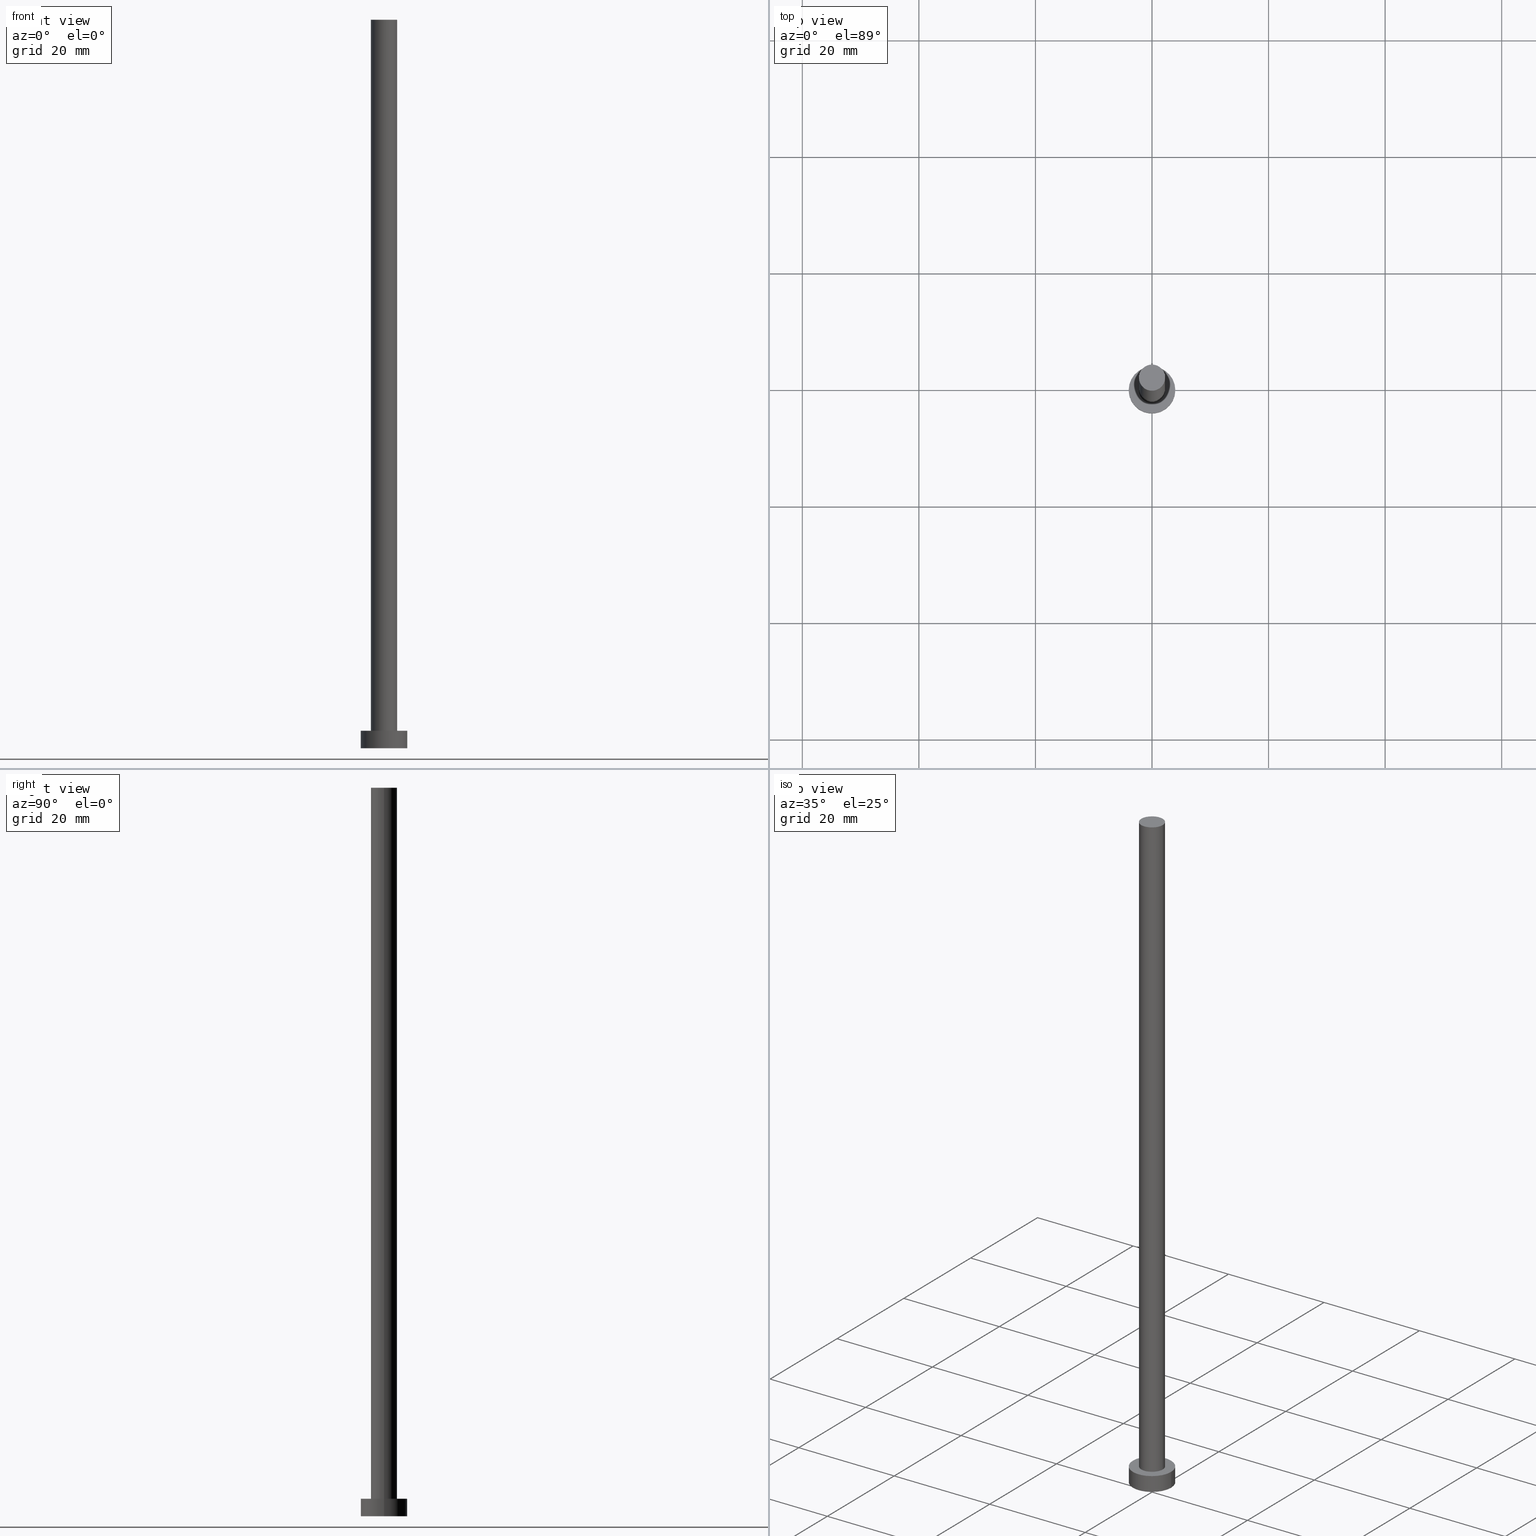
[diagram: canonical four-view strip — front | top / right | iso, engineering-drawing reading convention]
A machine part, canonical four-view strip (front | top / right | iso — engineering-drawing reading convention). The complete STEP part file that produces these views, byte-faithful:
ISO-10303-21;
HEADER;
FILE_DESCRIPTION (( 'STEP AP203' ),
    '1' );
FILE_NAME ('6669.STEP',
    '2023-02-13T13:55:14',
    ( '' ),
    ( '' ),
    'SwSTEP 2.0',
    'SolidWorks 2019',
    '' );
FILE_SCHEMA (( 'CONFIG_CONTROL_DESIGN' ));
ENDSEC;

DATA;
#1 = DIRECTION ( 'NONE',  ( -0.000000000000000000, -0.000000000000000000, -1.000000000000000000 ) ) ;
#2 = MECHANICAL_CONTEXT ( 'NONE', #223, 'mechanical' ) ;
#3 = ORIENTED_EDGE ( 'NONE', *, *, #190, .F. ) ;
#4 = EDGE_CURVE ( 'NONE', #200, #194, #64, .T. ) ;
#5 = DIRECTION ( 'NONE',  ( -0.000000000000000000, -0.000000000000000000, -1.000000000000000000 ) ) ;
#6 = LOCAL_TIME ( 14, 55, 14.00000000000000000, #148 ) ;
#7 = EDGE_LOOP ( 'NONE', ( #3, #105 ) ) ;
#8 = APPROVAL_STATUS ( 'not_yet_approved' ) ;
#9 = ORIENTED_EDGE ( 'NONE', *, *, #128, .F. ) ;
#10 = ORIENTED_EDGE ( 'NONE', *, *, #255, .F. ) ;
#11 = ADVANCED_FACE ( 'NONE', ( #151 ), #90, .T. ) ;
#12 = APPROVAL_DATE_TIME ( #31, #188 ) ;
#13 = VECTOR ( 'NONE', #5, 1000.000000000000000 ) ;
#14 = PRODUCT_DEFINITION_FORMATION_WITH_SPECIFIED_SOURCE ( 'LIBOVOLN�', '', #59, .NOT_KNOWN. ) ;
#15 = FACE_OUTER_BOUND ( 'NONE', #7, .T. ) ;
#16 = DIRECTION ( 'NONE',  ( 0.000000000000000000, 0.000000000000000000, 1.000000000000000000 ) ) ;
#17 = DIRECTION ( 'NONE',  ( 0.000000000000000000, 0.000000000000000000, 1.000000000000000000 ) ) ;
#18 = CARTESIAN_POINT ( 'NONE',  ( 0.000000000000000000, 0.000000000000000000, 0.000000000000000000 ) ) ;
#19 = MANIFOLD_SOLID_BREP ( 'P�idat vysunut�m3', #75 ) ;
#20 = CIRCLE ( 'NONE', #48, 4.000000000000000000 ) ;
#21 = ORIENTED_EDGE ( 'NONE', *, *, #4, .F. ) ;
#22 = DIRECTION ( 'NONE',  ( 1.000000000000000000, 0.000000000000000000, 0.000000000000000000 ) ) ;
#23 = ORIENTED_EDGE ( 'NONE', *, *, #173, .F. ) ;
#24 = PERSON_AND_ORGANIZATION_ROLE ( 'design_owner' ) ;
#25 = EDGE_LOOP ( 'NONE', ( #103, #47 ) ) ;
#26 = VERTEX_POINT ( 'NONE', #186 ) ;
#27 = ADVANCED_FACE ( 'NONE', ( #114 ), #127, .T. ) ;
#28 = ORIENTED_EDGE ( 'NONE', *, *, #190, .T. ) ;
#29 = AXIS2_PLACEMENT_3D ( 'NONE', #230, #58, #78 ) ;
#30 = APPROVAL_STATUS ( 'not_yet_approved' ) ;
#31 = DATE_AND_TIME ( #93, #6 ) ;
#32 = APPROVAL_ROLE ( '' ) ;
#33 = PERSON_AND_ORGANIZATION_ROLE ( 'creator' ) ;
#34 = AXIS2_PLACEMENT_3D ( 'NONE', #239, #138, #22 ) ;
#35 = CC_DESIGN_PERSON_AND_ORGANIZATION_ASSIGNMENT ( #220, #206, ( #14 ) ) ;
#36 = FACE_BOUND ( 'NONE', #67, .T. ) ;
#37 = AXIS2_PLACEMENT_3D ( 'NONE', #246, #95, #189 ) ;
#38 = CARTESIAN_POINT ( 'NONE',  ( 2.250000000000000000, 2.755455298081543792E-16, 125.0000000000000000 ) ) ;
#39 = CARTESIAN_POINT ( 'NONE',  ( 0.000000000000000000, 0.000000000000000000, 0.000000000000000000 ) ) ;
#40 = CC_DESIGN_PERSON_AND_ORGANIZATION_ASSIGNMENT ( #204, #33, ( #143 ) ) ;
#41 = CYLINDRICAL_SURFACE ( 'NONE', #29, 2.250000000000000000 ) ;
#42 = VECTOR ( 'NONE', #245, 1000.000000000000000 ) ;
#43 = DIRECTION ( 'NONE',  ( 1.000000000000000000, 0.000000000000000000, -0.000000000000000000 ) ) ;
#44 = ORIENTED_EDGE ( 'NONE', *, *, #229, .F. ) ;
#45 = APPLICATION_PROTOCOL_DEFINITION ( 'international standard', 'config_control_design', 1994, #223 ) ;
#46 = CC_DESIGN_DATE_AND_TIME_ASSIGNMENT ( #202, #221, ( #118 ) ) ;
#47 = ORIENTED_EDGE ( 'NONE', *, *, #255, .T. ) ;
#48 = AXIS2_PLACEMENT_3D ( 'NONE', #157, #60, #215 ) ;
#49 = PERSON_AND_ORGANIZATION ( #88, #109 ) ;
#50 = SECURITY_CLASSIFICATION_LEVEL ( 'unclassified' ) ;
#51 = APPROVAL_STATUS ( 'not_yet_approved' ) ;
#52 = ADVANCED_FACE ( 'NONE', ( #36, #120 ), #254, .T. ) ;
#53 = CARTESIAN_POINT ( 'NONE',  ( -4.000000000000000000, 0.000000000000000000, 3.000000000000000000 ) ) ;
#54 = CARTESIAN_POINT ( 'NONE',  ( 0.000000000000000000, 0.000000000000000000, 0.000000000000000000 ) ) ;
#55 = PLANE ( 'NONE',  #166 ) ;
#56 = PRODUCT_RELATED_PRODUCT_CATEGORY ( 'detail', '', ( #59 ) ) ;
#57 = CARTESIAN_POINT ( 'NONE',  ( 0.000000000000000000, 0.000000000000000000, 3.000000000000000000 ) ) ;
#58 = DIRECTION ( 'NONE',  ( -0.000000000000000000, -0.000000000000000000, -1.000000000000000000 ) ) ;
#59 = PRODUCT ( '6669', '6669', '', ( #2 ) ) ;
#60 = DIRECTION ( 'NONE',  ( 0.000000000000000000, 0.000000000000000000, 1.000000000000000000 ) ) ;
#61 = VERTEX_POINT ( 'NONE', #210 ) ;
#62 = ORIENTED_EDGE ( 'NONE', *, *, #173, .T. ) ;
#63 = CARTESIAN_POINT ( 'NONE',  ( 0.000000000000000000, 0.000000000000000000, 125.0000000000000000 ) ) ;
#64 = LINE ( 'NONE', #139, #42 ) ;
#65 = ADVANCED_FACE ( 'NONE', ( #15 ), #55, .F. ) ;
#66 = APPLICATION_PROTOCOL_DEFINITION ( 'international standard', 'config_control_design', 1994, #169 ) ;
#67 = EDGE_LOOP ( 'NONE', ( #162, #9 ) ) ;
#68 = ORIENTED_EDGE ( 'NONE', *, *, #213, .T. ) ;
#69 =( GEOMETRIC_REPRESENTATION_CONTEXT ( 3 ) GLOBAL_UNCERTAINTY_ASSIGNED_CONTEXT ( ( #252 ) ) GLOBAL_UNIT_ASSIGNED_CONTEXT ( ( #216, #84, #178 ) ) REPRESENTATION_CONTEXT ( 'NONE', 'WORKASPACE' ) );
#70 = CC_DESIGN_APPROVAL ( #170, ( #14 ) ) ;
#71 = PERSON_AND_ORGANIZATION ( #88, #109 ) ;
#72 = EDGE_CURVE ( 'NONE', #197, #26, #121, .T. ) ;
#73 = DIRECTION ( 'NONE',  ( 1.000000000000000000, 0.000000000000000000, 0.000000000000000000 ) ) ;
#74 = CARTESIAN_POINT ( 'NONE',  ( -2.250000000000000000, 0.000000000000000000, 125.0000000000000000 ) ) ;
#75 = CLOSED_SHELL ( 'NONE', ( #133, #208, #27, #52, #65, #11, #79 ) ) ;
#76 = DIRECTION ( 'NONE',  ( 0.000000000000000000, 0.000000000000000000, 1.000000000000000000 ) ) ;
#77 = CARTESIAN_POINT ( 'NONE',  ( 0.000000000000000000, 0.000000000000000000, 3.000000000000000000 ) ) ;
#78 = DIRECTION ( 'NONE',  ( -1.000000000000000000, 0.000000000000000000, 0.000000000000000000 ) ) ;
#79 = ADVANCED_FACE ( 'NONE', ( #172 ), #175, .T. ) ;
#80 = ORIENTED_EDGE ( 'NONE', *, *, #128, .T. ) ;
#81 = ORIENTED_EDGE ( 'NONE', *, *, #229, .T. ) ;
#82 = EDGE_CURVE ( 'NONE', #194, #160, #91, .T. ) ;
#83 = ORIENTED_EDGE ( 'NONE', *, *, #4, .T. ) ;
#84 =( NAMED_UNIT ( * ) PLANE_ANGLE_UNIT ( ) SI_UNIT ( $, .RADIAN. ) );
#85 = ORIENTED_EDGE ( 'NONE', *, *, #184, .F. ) ;
#86 = CALENDAR_DATE ( 2023, 13, 2 ) ;
#87 = LOCAL_TIME ( 14, 55, 14.00000000000000000, #112 ) ;
#88 = PERSON ( 'NEUR�EN�', 'NEUR�EN�', 'NEUR�EN�', ('NEUR�EN�'), ('NEUR�EN�'), ('NEUR�EN�') ) ;
#89 = LOCAL_TIME ( 14, 55, 14.00000000000000000, #241 ) ;
#90 = CYLINDRICAL_SURFACE ( 'NONE', #201, 2.250000000000000000 ) ;
#91 = CIRCLE ( 'NONE', #212, 4.000000000000000000 ) ;
#92 = DATE_AND_TIME ( #219, #89 ) ;
#93 = CALENDAR_DATE ( 2023, 13, 2 ) ;
#94 = EDGE_CURVE ( 'NONE', #26, #61, #250, .T. ) ;
#95 = DIRECTION ( 'NONE',  ( -0.000000000000000000, -0.000000000000000000, -1.000000000000000000 ) ) ;
#96 = CARTESIAN_POINT ( 'NONE',  ( 0.000000000000000000, 0.000000000000000000, 3.000000000000000000 ) ) ;
#97 = LINE ( 'NONE', #38, #99 ) ;
#98 = DIRECTION ( 'NONE',  ( -0.000000000000000000, -0.000000000000000000, -1.000000000000000000 ) ) ;
#99 = VECTOR ( 'NONE', #98, 1000.000000000000000 ) ;
#100 = CARTESIAN_POINT ( 'NONE',  ( -2.250000000000000000, 0.000000000000000000, 125.0000000000000000 ) ) ;
#101 = AXIS2_PLACEMENT_3D ( 'NONE', #63, #158, #235 ) ;
#102 = ADVANCED_BREP_SHAPE_REPRESENTATION ( '6669', ( #19, #130 ), #69 ) ;
#103 = ORIENTED_EDGE ( 'NONE', *, *, #226, .T. ) ;
#104 = CC_DESIGN_DATE_AND_TIME_ASSIGNMENT ( #168, #126, ( #143 ) ) ;
#105 = ORIENTED_EDGE ( 'NONE', *, *, #82, .F. ) ;
#106 = CIRCLE ( 'NONE', #111, 2.250000000000000000 ) ;
#107 = ORIENTED_EDGE ( 'NONE', *, *, #94, .T. ) ;
#108 = CIRCLE ( 'NONE', #233, 4.000000000000000000 ) ;
#109 = ORGANIZATION ( 'NEUR�EN�', 'NEUR�EN�', '' ) ;
#110 = SHAPE_DEFINITION_REPRESENTATION ( #122, #102 ) ;
#111 = AXIS2_PLACEMENT_3D ( 'NONE', #77, #154, #156 ) ;
#112 = COORDINATED_UNIVERSAL_TIME_OFFSET ( 1, 0, .AHEAD. ) ;
#113 = CALENDAR_DATE ( 2023, 13, 2 ) ;
#114 = FACE_OUTER_BOUND ( 'NONE', #242, .T. ) ;
#115 = AXIS2_PLACEMENT_3D ( 'NONE', #57, #176, #132 ) ;
#116 = CARTESIAN_POINT ( 'NONE',  ( 0.000000000000000000, 0.000000000000000000, 125.0000000000000000 ) ) ;
#117 = CARTESIAN_POINT ( 'NONE',  ( 4.000000000000000000, 4.898587196589412829E-16, 3.000000000000000000 ) ) ;
#118 = SECURITY_CLASSIFICATION ( '', '', #50 ) ;
#119 = DIRECTION ( 'NONE',  ( 1.000000000000000000, 0.000000000000000000, -0.000000000000000000 ) ) ;
#120 = FACE_OUTER_BOUND ( 'NONE', #238, .T. ) ;
#121 = LINE ( 'NONE', #74, #135 ) ;
#122 = PRODUCT_DEFINITION_SHAPE ( 'NONE', 'NONE',  #143 ) ;
#123 = EDGE_LOOP ( 'NONE', ( #85, #83, #182, #124 ) ) ;
#124 = ORIENTED_EDGE ( 'NONE', *, *, #213, .F. ) ;
#125 = EDGE_LOOP ( 'NONE', ( #10, #62, #80, #217 ) ) ;
#126 = DATE_TIME_ROLE ( 'creation_date' ) ;
#127 = CYLINDRICAL_SURFACE ( 'NONE', #37, 4.000000000000000000 ) ;
#128 = EDGE_CURVE ( 'NONE', #61, #26, #106, .T. ) ;
#129 = AXIS2_PLACEMENT_3D ( 'NONE', #211, #16, #73 ) ;
#130 = AXIS2_PLACEMENT_3D ( 'NONE', #196, #136, #214 ) ;
#131 = DIRECTION ( 'NONE',  ( 0.000000000000000000, 0.000000000000000000, 1.000000000000000000 ) ) ;
#132 = DIRECTION ( 'NONE',  ( -1.000000000000000000, 0.000000000000000000, 0.000000000000000000 ) ) ;
#133 = ADVANCED_FACE ( 'NONE', ( #171 ), #41, .T. ) ;
#134 = CARTESIAN_POINT ( 'NONE',  ( 2.250000000000000000, 2.755455298081543792E-16, 125.0000000000000000 ) ) ;
#135 = VECTOR ( 'NONE', #1, 1000.000000000000000 ) ;
#136 = DIRECTION ( 'NONE',  ( 0.000000000000000000, 0.000000000000000000, 1.000000000000000000 ) ) ;
#137 = CC_DESIGN_PERSON_AND_ORGANIZATION_ASSIGNMENT ( #49, #225, ( #14 ) ) ;
#138 = DIRECTION ( 'NONE',  ( 0.000000000000000000, 0.000000000000000000, 1.000000000000000000 ) ) ;
#139 = CARTESIAN_POINT ( 'NONE',  ( 4.000000000000000000, 4.898587196589412829E-16, 3.000000000000000000 ) ) ;
#140 = CC_DESIGN_SECURITY_CLASSIFICATION ( #118, ( #14 ) ) ;
#141 = PERSON_AND_ORGANIZATION ( #88, #109 ) ;
#142 = ORIENTED_EDGE ( 'NONE', *, *, #226, .F. ) ;
#143 = PRODUCT_DEFINITION ( 'NEZN�M�', '', #14, #240 ) ;
#144 = CIRCLE ( 'NONE', #34, 2.250000000000000000 ) ;
#145 = COORDINATED_UNIVERSAL_TIME_OFFSET ( 1, 0, .AHEAD. ) ;
#146 = ORIENTED_EDGE ( 'NONE', *, *, #184, .T. ) ;
#147 = DIRECTION ( 'NONE',  ( -0.000000000000000000, -0.000000000000000000, -1.000000000000000000 ) ) ;
#148 = COORDINATED_UNIVERSAL_TIME_OFFSET ( 1, 0, .AHEAD. ) ;
#149 = CC_DESIGN_APPROVAL ( #188, ( #118 ) ) ;
#150 = COORDINATED_UNIVERSAL_TIME_OFFSET ( 1, 0, .AHEAD. ) ;
#151 = FACE_OUTER_BOUND ( 'NONE', #195, .T. ) ;
#152 = APPROVAL_PERSON_ORGANIZATION ( #163, #188, #244 ) ;
#153 = DIRECTION ( 'NONE',  ( 1.000000000000000000, 0.000000000000000000, 0.000000000000000000 ) ) ;
#154 = DIRECTION ( 'NONE',  ( 0.000000000000000000, 0.000000000000000000, 1.000000000000000000 ) ) ;
#155 = FACE_OUTER_BOUND ( 'NONE', #123, .T. ) ;
#156 = DIRECTION ( 'NONE',  ( 1.000000000000000000, 0.000000000000000000, 0.000000000000000000 ) ) ;
#157 = CARTESIAN_POINT ( 'NONE',  ( 0.000000000000000000, 0.000000000000000000, 3.000000000000000000 ) ) ;
#158 = DIRECTION ( 'NONE',  ( 0.000000000000000000, 0.000000000000000000, 1.000000000000000000 ) ) ;
#159 = APPROVAL_PERSON_ORGANIZATION ( #71, #170, #32 ) ;
#160 = VERTEX_POINT ( 'NONE', #228 ) ;
#161 = APPROVAL_ROLE ( '' ) ;
#162 = ORIENTED_EDGE ( 'NONE', *, *, #94, .F. ) ;
#163 = PERSON_AND_ORGANIZATION ( #88, #109 ) ;
#164 = CARTESIAN_POINT ( 'NONE',  ( 0.000000000000000000, 0.000000000000000000, 125.0000000000000000 ) ) ;
#165 = APPROVAL ( #8, 'NEUR�EN�' ) ;
#166 = AXIS2_PLACEMENT_3D ( 'NONE', #54, #209, #193 ) ;
#167 = APPROVAL_DATE_TIME ( #92, #165 ) ;
#168 = DATE_AND_TIME ( #185, #253 ) ;
#169 = APPLICATION_CONTEXT ( 'configuration controlled 3d designs of mechanical parts and assemblies' ) ;
#170 = APPROVAL ( #51, 'NEUR�EN�' ) ;
#171 = FACE_OUTER_BOUND ( 'NONE', #125, .T. ) ;
#172 = FACE_OUTER_BOUND ( 'NONE', #25, .T. ) ;
#173 = EDGE_CURVE ( 'NONE', #179, #61, #97, .T. ) ;
#174 = CARTESIAN_POINT ( 'NONE',  ( 4.000000000000000000, 4.898587196589412829E-16, 0.000000000000000000 ) ) ;
#175 = PLANE ( 'NONE',  #218 ) ;
#176 = DIRECTION ( 'NONE',  ( -0.000000000000000000, -0.000000000000000000, -1.000000000000000000 ) ) ;
#177 = CIRCLE ( 'NONE', #101, 2.250000000000000000 ) ;
#178 =( NAMED_UNIT ( * ) SI_UNIT ( $, .STERADIAN. ) SOLID_ANGLE_UNIT ( ) );
#179 = VERTEX_POINT ( 'NONE', #134 ) ;
#180 = AXIS2_PLACEMENT_3D ( 'NONE', #248, #17, #43 ) ;
#181 = ORIENTED_EDGE ( 'NONE', *, *, #72, .T. ) ;
#182 = ORIENTED_EDGE ( 'NONE', *, *, #82, .T. ) ;
#183 = PERSON_AND_ORGANIZATION ( #88, #109 ) ;
#184 = EDGE_CURVE ( 'NONE', #200, #199, #236, .T. ) ;
#185 = CALENDAR_DATE ( 2023, 13, 2 ) ;
#186 = CARTESIAN_POINT ( 'NONE',  ( -2.250000000000000000, 0.000000000000000000, 3.000000000000000000 ) ) ;
#187 = DATE_AND_TIME ( #113, #224 ) ;
#188 = APPROVAL ( #30, 'NEUR�EN�' ) ;
#189 = DIRECTION ( 'NONE',  ( -1.000000000000000000, 0.000000000000000000, 0.000000000000000000 ) ) ;
#190 = EDGE_CURVE ( 'NONE', #160, #194, #108, .T. ) ;
#191 = DIRECTION ( 'NONE',  ( 0.000000000000000000, 0.000000000000000000, 1.000000000000000000 ) ) ;
#192 = LINE ( 'NONE', #53, #13 ) ;
#193 = DIRECTION ( 'NONE',  ( 1.000000000000000000, 0.000000000000000000, -0.000000000000000000 ) ) ;
#194 = VERTEX_POINT ( 'NONE', #174 ) ;
#195 = EDGE_LOOP ( 'NONE', ( #23, #142, #181, #107 ) ) ;
#196 = CARTESIAN_POINT ( 'NONE',  ( 0.000000000000000000, 0.000000000000000000, 0.000000000000000000 ) ) ;
#197 = VERTEX_POINT ( 'NONE', #100 ) ;
#198 = CC_DESIGN_APPROVAL ( #165, ( #143 ) ) ;
#199 = VERTEX_POINT ( 'NONE', #251 ) ;
#200 = VERTEX_POINT ( 'NONE', #117 ) ;
#201 = AXIS2_PLACEMENT_3D ( 'NONE', #164, #147, #222 ) ;
#202 = DATE_AND_TIME ( #86, #87 ) ;
#203 = PERSON_AND_ORGANIZATION_ROLE ( 'classification_officer' ) ;
#204 = PERSON_AND_ORGANIZATION ( #88, #109 ) ;
#205 = APPROVAL_DATE_TIME ( #187, #170 ) ;
#206 = PERSON_AND_ORGANIZATION_ROLE ( 'design_supplier' ) ;
#207 = DIRECTION ( 'NONE',  ( 1.000000000000000000, 0.000000000000000000, 0.000000000000000000 ) ) ;
#208 = ADVANCED_FACE ( 'NONE', ( #155 ), #231, .T. ) ;
#209 = DIRECTION ( 'NONE',  ( 0.000000000000000000, 0.000000000000000000, 1.000000000000000000 ) ) ;
#210 = CARTESIAN_POINT ( 'NONE',  ( 2.250000000000000000, 2.755455298081543792E-16, 3.000000000000000000 ) ) ;
#211 = CARTESIAN_POINT ( 'NONE',  ( 0.000000000000000000, 0.000000000000000000, 3.000000000000000000 ) ) ;
#212 = AXIS2_PLACEMENT_3D ( 'NONE', #39, #191, #232 ) ;
#213 = EDGE_CURVE ( 'NONE', #199, #160, #192, .T. ) ;
#214 = DIRECTION ( 'NONE',  ( 1.000000000000000000, 0.000000000000000000, 0.000000000000000000 ) ) ;
#215 = DIRECTION ( 'NONE',  ( 1.000000000000000000, 0.000000000000000000, 0.000000000000000000 ) ) ;
#216 =( LENGTH_UNIT ( ) NAMED_UNIT ( * ) SI_UNIT ( .MILLI., .METRE. ) );
#217 = ORIENTED_EDGE ( 'NONE', *, *, #72, .F. ) ;
#218 = AXIS2_PLACEMENT_3D ( 'NONE', #116, #131, #119 ) ;
#219 = CALENDAR_DATE ( 2023, 13, 2 ) ;
#220 = PERSON_AND_ORGANIZATION ( #88, #109 ) ;
#221 = DATE_TIME_ROLE ( 'classification_date' ) ;
#222 = DIRECTION ( 'NONE',  ( -1.000000000000000000, 0.000000000000000000, 0.000000000000000000 ) ) ;
#223 = APPLICATION_CONTEXT ( 'configuration controlled 3d designs of mechanical parts and assemblies' ) ;
#224 = LOCAL_TIME ( 14, 55, 14.00000000000000000, #145 ) ;
#225 = PERSON_AND_ORGANIZATION_ROLE ( 'creator' ) ;
#226 = EDGE_CURVE ( 'NONE', #197, #179, #144, .T. ) ;
#227 = AXIS2_PLACEMENT_3D ( 'NONE', #96, #76, #207 ) ;
#228 = CARTESIAN_POINT ( 'NONE',  ( -4.000000000000000000, 0.000000000000000000, 0.000000000000000000 ) ) ;
#229 = EDGE_CURVE ( 'NONE', #199, #200, #20, .T. ) ;
#230 = CARTESIAN_POINT ( 'NONE',  ( 0.000000000000000000, 0.000000000000000000, 125.0000000000000000 ) ) ;
#231 = CYLINDRICAL_SURFACE ( 'NONE', #115, 4.000000000000000000 ) ;
#232 = DIRECTION ( 'NONE',  ( 1.000000000000000000, 0.000000000000000000, 0.000000000000000000 ) ) ;
#233 = AXIS2_PLACEMENT_3D ( 'NONE', #18, #247, #153 ) ;
#234 = CC_DESIGN_PERSON_AND_ORGANIZATION_ASSIGNMENT ( #237, #24, ( #59 ) ) ;
#235 = DIRECTION ( 'NONE',  ( 1.000000000000000000, 0.000000000000000000, 0.000000000000000000 ) ) ;
#236 = CIRCLE ( 'NONE', #129, 4.000000000000000000 ) ;
#237 = PERSON_AND_ORGANIZATION ( #88, #109 ) ;
#238 = EDGE_LOOP ( 'NONE', ( #81, #146 ) ) ;
#239 = CARTESIAN_POINT ( 'NONE',  ( 0.000000000000000000, 0.000000000000000000, 125.0000000000000000 ) ) ;
#240 = DESIGN_CONTEXT ( 'detailed design', #169, 'design' ) ;
#241 = COORDINATED_UNIVERSAL_TIME_OFFSET ( 1, 0, .AHEAD. ) ;
#242 = EDGE_LOOP ( 'NONE', ( #21, #44, #68, #28 ) ) ;
#243 = CC_DESIGN_PERSON_AND_ORGANIZATION_ASSIGNMENT ( #183, #203, ( #118 ) ) ;
#244 = APPROVAL_ROLE ( '' ) ;
#245 = DIRECTION ( 'NONE',  ( -0.000000000000000000, -0.000000000000000000, -1.000000000000000000 ) ) ;
#246 = CARTESIAN_POINT ( 'NONE',  ( 0.000000000000000000, 0.000000000000000000, 3.000000000000000000 ) ) ;
#247 = DIRECTION ( 'NONE',  ( 0.000000000000000000, 0.000000000000000000, 1.000000000000000000 ) ) ;
#248 = CARTESIAN_POINT ( 'NONE',  ( 0.000000000000000000, 0.000000000000000000, 3.000000000000000000 ) ) ;
#249 = APPROVAL_PERSON_ORGANIZATION ( #141, #165, #161 ) ;
#250 = CIRCLE ( 'NONE', #227, 2.250000000000000000 ) ;
#251 = CARTESIAN_POINT ( 'NONE',  ( -4.000000000000000000, 0.000000000000000000, 3.000000000000000000 ) ) ;
#252 = UNCERTAINTY_MEASURE_WITH_UNIT (LENGTH_MEASURE( 1.000000000000000082E-05 ), #216, 'distance_accuracy_value', 'NONE');
#253 = LOCAL_TIME ( 14, 55, 14.00000000000000000, #150 ) ;
#254 = PLANE ( 'NONE',  #180 ) ;
#255 = EDGE_CURVE ( 'NONE', #179, #197, #177, .T. ) ;
ENDSEC;
END-ISO-10303-21;
